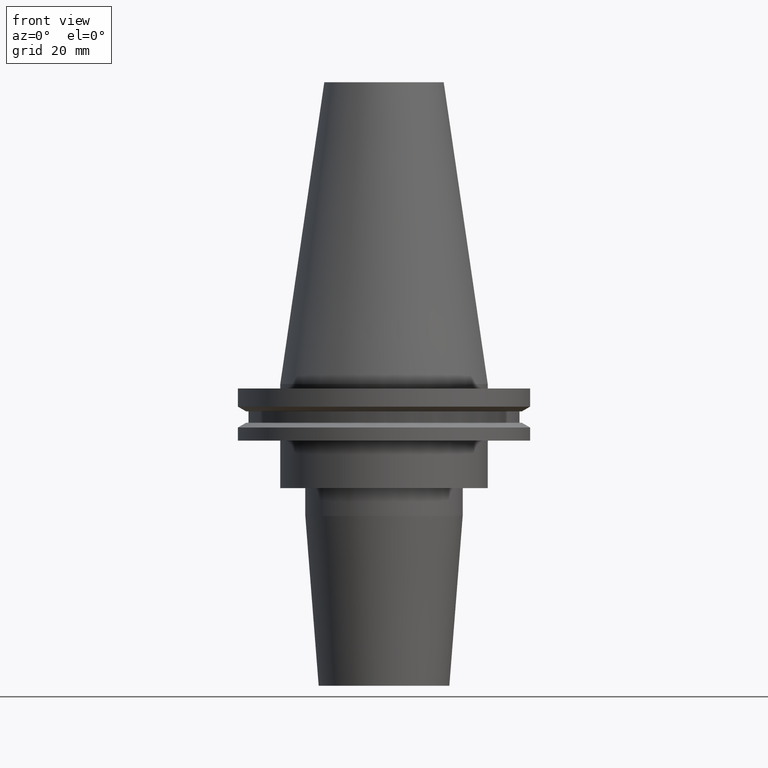
[diagram: clean part render]
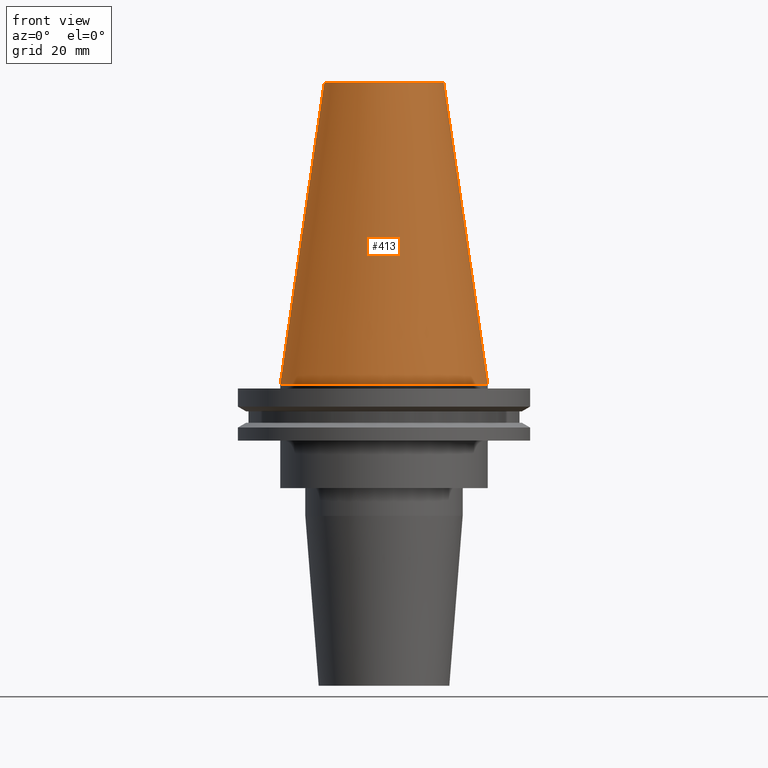
[diagram: same view with one face highlighted and labeled with its STEP entity id]
A machine part, front view. The second image highlights one B-rep face of the part: STEP entity #413.
In plain terms, the highlighted conical surface has half-angle 8.297 deg.
Its self-contained STEP definition (entity closure, byte-faithful):
#20 = EDGE_CURVE ( 'NONE', #270, #280, #747, .T. ) ;
#26 = VECTOR ( 'NONE', #728, 999.9999999999998863 ) ;
#62 = DIRECTION ( 'NONE',  ( 0.000000000000000000, 0.000000000000000000, -1.000000000000000000 ) ) ;
#77 = DIRECTION ( 'NONE',  ( -0.000000000000000000, -0.000000000000000000, 1.000000000000000000 ) ) ;
#84 = CIRCLE ( 'NONE', #568, 20.10819343178871321 ) ;
#100 = VERTEX_POINT ( 'NONE', #741 ) ;
#101 = VECTOR ( 'NONE', #540, 999.9999999999998863 ) ;
#179 = FACE_OUTER_BOUND ( 'NONE', #475, .T. ) ;
#205 = CARTESIAN_POINT ( 'NONE',  ( 34.92499999999999005, 4.277078946022130098E-15, 0.000000000000000000 ) ) ;
#259 = LINE ( 'NONE', #468, #26 ) ;
#270 = VERTEX_POINT ( 'NONE', #829 ) ;
#278 = ORIENTED_EDGE ( 'NONE', *, *, #20, .T. ) ;
#280 = VERTEX_POINT ( 'NONE', #490 ) ;
#283 = ORIENTED_EDGE ( 'NONE', *, *, #461, .T. ) ;
#317 = ORIENTED_EDGE ( 'NONE', *, *, #556, .F. ) ;
#376 = AXIS2_PLACEMENT_3D ( 'NONE', #739, #77, #799 ) ;
#413 = ADVANCED_FACE ( 'NONE', ( #179 ), #557, .T. ) ;
#461 = EDGE_CURVE ( 'NONE', #280, #483, #695, .T. ) ;
#468 = CARTESIAN_POINT ( 'NONE',  ( 34.92499999999999005, 4.277078946022130098E-15, 0.000000000000000000 ) ) ;
#469 = DIRECTION ( 'NONE',  ( -0.000000000000000000, -0.000000000000000000, 1.000000000000000000 ) ) ;
#470 = CARTESIAN_POINT ( 'NONE',  ( -34.92499999999999005, 0.000000000000000000, 0.000000000000000000 ) ) ;
#475 = EDGE_LOOP ( 'NONE', ( #317, #680, #278, #283 ) ) ;
#483 = VERTEX_POINT ( 'NONE', #205 ) ;
#490 = CARTESIAN_POINT ( 'NONE',  ( -34.92499999999999005, 0.000000000000000000, 0.000000000000000000 ) ) ;
#519 = CARTESIAN_POINT ( 'NONE',  ( 0.000000000000000000, 0.000000000000000000, 0.000000000000000000 ) ) ;
#537 = EDGE_CURVE ( 'NONE', #270, #100, #84, .T. ) ;
#540 = DIRECTION ( 'NONE',  ( -0.1443082272672999988, 0.000000000000000000, -0.9895327864921755756 ) ) ;
#556 = EDGE_CURVE ( 'NONE', #100, #483, #259, .T. ) ;
#557 = CONICAL_SURFACE ( 'NONE', #663, 34.92499999999999005, 0.1448138465474119452 ) ;
#568 = AXIS2_PLACEMENT_3D ( 'NONE', #790, #469, #729 ) ;
#663 = AXIS2_PLACEMENT_3D ( 'NONE', #519, #62, #778 ) ;
#680 = ORIENTED_EDGE ( 'NONE', *, *, #537, .F. ) ;
#695 = CIRCLE ( 'NONE', #376, 34.92499999999999005 ) ;
#728 = DIRECTION ( 'NONE',  ( 0.1443082272672999988, 1.767266086135277066E-17, -0.9895327864921755756 ) ) ;
#729 = DIRECTION ( 'NONE',  ( 1.000000000000000000, 0.000000000000000000, 0.000000000000000000 ) ) ;
#739 = CARTESIAN_POINT ( 'NONE',  ( 0.000000000000000000, 0.000000000000000000, 0.000000000000000000 ) ) ;
#741 = CARTESIAN_POINT ( 'NONE',  ( 20.10819343178871321, 3.369811209154858606E-15, 101.5999999999999801 ) ) ;
#747 = LINE ( 'NONE', #470, #101 ) ;
#778 = DIRECTION ( 'NONE',  ( -1.000000000000000000, 0.000000000000000000, 0.000000000000000000 ) ) ;
#790 = CARTESIAN_POINT ( 'NONE',  ( 0.000000000000000000, 0.000000000000000000, 101.5999999999999801 ) ) ;
#799 = DIRECTION ( 'NONE',  ( 1.000000000000000000, 0.000000000000000000, 0.000000000000000000 ) ) ;
#829 = CARTESIAN_POINT ( 'NONE',  ( -20.10819343178871321, 0.000000000000000000, 101.5999999999999801 ) ) ;